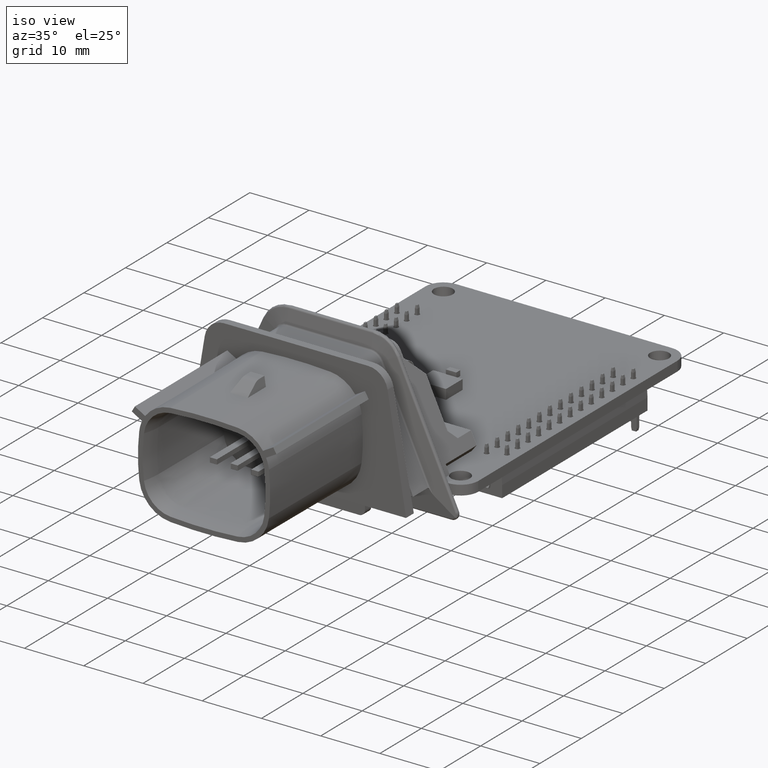
[diagram: clean part render]
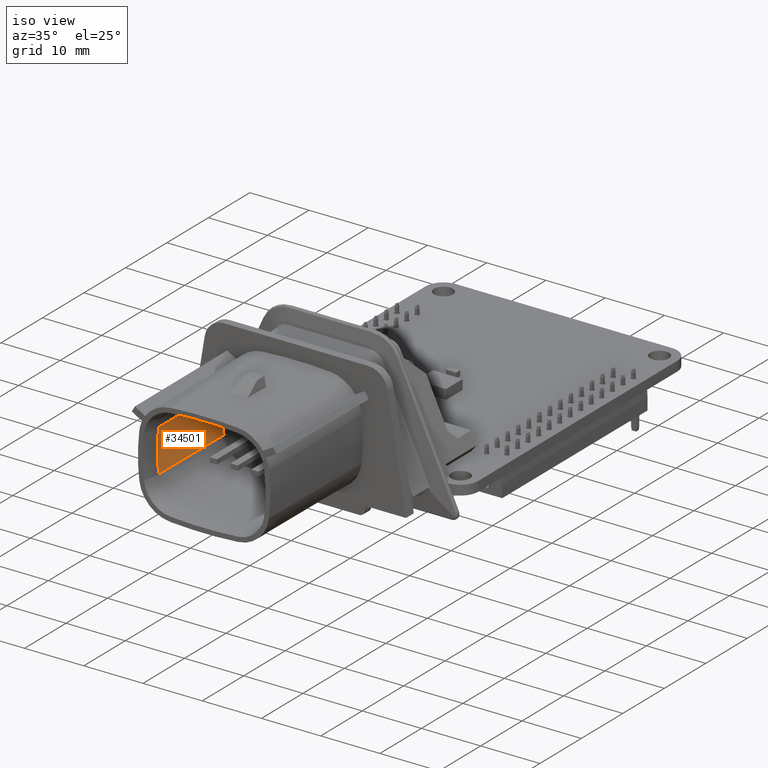
[diagram: same view with one face highlighted and labeled with its STEP entity id]
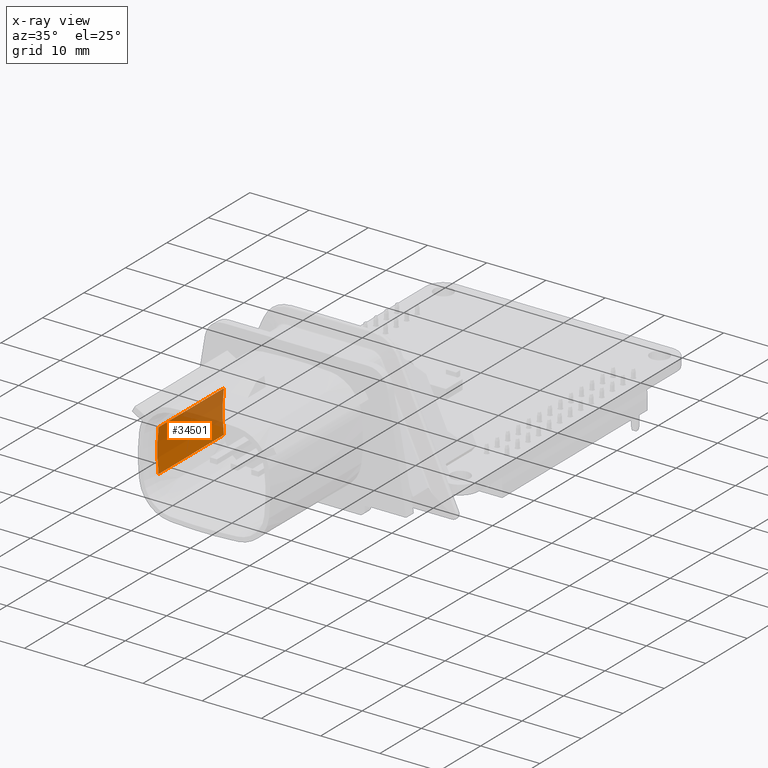
[diagram: x-ray of the same camera — body ghosted, the highlighted face saturated]
A machine part, iso view. The second image highlights one B-rep face of the part: STEP entity #34501.
The next image is the same camera in x-ray: the body ghosted, the highlighted face saturated — about 28% of this face is hidden behind the body in this view.
In plain terms, the highlighted conical surface has half-angle 0.25 deg.
Its self-contained STEP definition (entity closure, byte-faithful):
#6799 = PLANE('',#6800);
#6800 = AXIS2_PLACEMENT_3D('',#6801,#6802,#6803);
#6801 = CARTESIAN_POINT('',(5.99676902494,18.25659034217,15.335));
#6802 = DIRECTION('',(0.E+000,0.E+000,1.));
#6803 = DIRECTION('',(1.,-0.E+000,0.E+000));
#13233 = TOROIDAL_SURFACE('',#13234,40.2717413,9.8464104);
#13234 = AXIS2_PLACEMENT_3D('',#13235,#13236,#13237);
#13235 = CARTESIAN_POINT('',(27.98683771858,11.50206580454,
    30.94184092955));
#13236 = DIRECTION('',(-0.E+000,0.E+000,-1.));
#13237 = DIRECTION('',(-0.993093812473,-0.117322971442,0.E+000));
#21375 = EDGE_CURVE('',#21376,#21378,#21380,.T.);
#21376 = VERTEX_POINT('',#21377);
#21377 = CARTESIAN_POINT('',(-2.160649181462,15.06365555588,15.335));
#21378 = VERTEX_POINT('',#21379);
#21379 = CARTESIAN_POINT('',(-2.160649181462,7.940476053201,15.335));
#21380 = SURFACE_CURVE('',#21381,(#21386,#21393),.PCURVE_S1.);
#21381 = CIRCLE('',#21382,30.357139);
#21382 = AXIS2_PLACEMENT_3D('',#21383,#21384,#21385);
#21383 = CARTESIAN_POINT('',(27.98683771859,11.50206580455,
    15.33500000001));
#21384 = DIRECTION('',(0.E+000,0.E+000,1.));
#21385 = DIRECTION('',(-0.993093812473,0.117322971442,0.E+000));
#21386 = PCURVE('',#6799,#21387);
#21387 = DEFINITIONAL_REPRESENTATION('',(#21388),#21392);
#21388 = CIRCLE('',#21389,30.357139);
#21389 = AXIS2_PLACEMENT_2D('',#21390,#21391);
#21390 = CARTESIAN_POINT('',(21.99006869365,-6.75452453762));
#21391 = DIRECTION('',(-0.993093812473,0.117322971442));
#21392 = ( GEOMETRIC_REPRESENTATION_CONTEXT(2) 
PARAMETRIC_REPRESENTATION_CONTEXT() REPRESENTATION_CONTEXT('2D SPACE',''
  ) );
#21393 = PCURVE('',#21394,#21399);
#21394 = CONICAL_SURFACE('',#21395,30.3912818,4.3633231E-003);
#21395 = AXIS2_PLACEMENT_3D('',#21396,#21397,#21398);
#21396 = CARTESIAN_POINT('',(27.98683771858,11.50206580454,
    23.15990193177));
#21397 = DIRECTION('',(0.E+000,0.E+000,1.));
#21398 = DIRECTION('',(-1.,0.E+000,0.E+000));
#21399 = DEFINITIONAL_REPRESENTATION('',(#21400),#21426);
#21400 = B_SPLINE_CURVE_WITH_KNOTS('',3,(#21401,#21402,#21403,#21404,
    #21405,#21406,#21407,#21408,#21409,#21410,#21411,#21412,#21413,
    #21414,#21415,#21416,#21417,#21418,#21419,#21420,#21421,#21422,
    #21423,#21424,#21425),.UNSPECIFIED.,.F.,.F.,(4,1,1,1,1,1,1,1,1,1,1,1
    ,1,1,1,1,1,1,1,1,1,1,4),(0.E+000,1.069034587036E-002,
    2.138069174072E-002,3.207103761108E-002,4.276138348144E-002,
    5.34517293518E-002,6.414207522216E-002,7.483242109252E-002,
    8.552276696288E-002,9.621311283324E-002,0.106903458704,
    0.117593804574,0.128284150444,0.138974496315,0.149664842185,
    0.160355188055,0.171045533926,0.181735879796,0.192426225666,
    0.203116571537,0.213806917407,0.224497263278,0.235187609148),
  .QUASI_UNIFORM_KNOTS.);
#21401 = CARTESIAN_POINT('',(6.165591502605,-7.824901931795));
#21402 = CARTESIAN_POINT('',(6.169154951229,-7.824901931795));
#21403 = CARTESIAN_POINT('',(6.176281848476,-7.824901931795));
#21404 = CARTESIAN_POINT('',(6.186972194346,-7.824901931795));
#21405 = CARTESIAN_POINT('',(6.197662540216,-7.824901931795));
#21406 = CARTESIAN_POINT('',(6.208352886087,-7.824901931795));
#21407 = CARTESIAN_POINT('',(6.219043231957,-7.824901931795));
#21408 = CARTESIAN_POINT('',(6.229733577827,-7.824901931795));
#21409 = CARTESIAN_POINT('',(6.240423923698,-7.824901931795));
#21410 = CARTESIAN_POINT('',(6.251114269568,-7.824901931795));
#21411 = CARTESIAN_POINT('',(6.261804615439,-7.824901931795));
#21412 = CARTESIAN_POINT('',(6.272494961309,-7.824901931795));
#21413 = CARTESIAN_POINT('',(6.283185307179,-7.824901931795));
#21414 = CARTESIAN_POINT('',(6.29387565305,-7.824901931795));
#21415 = CARTESIAN_POINT('',(6.30456599892,-7.824901931795));
#21416 = CARTESIAN_POINT('',(6.31525634479,-7.824901931795));
#21417 = CARTESIAN_POINT('',(6.325946690661,-7.824901931795));
#21418 = CARTESIAN_POINT('',(6.336637036531,-7.824901931795));
#21419 = CARTESIAN_POINT('',(6.347327382401,-7.824901931795));
#21420 = CARTESIAN_POINT('',(6.358017728272,-7.824901931795));
#21421 = CARTESIAN_POINT('',(6.368708074142,-7.824901931795));
#21422 = CARTESIAN_POINT('',(6.379398420013,-7.824901931795));
#21423 = CARTESIAN_POINT('',(6.390088765883,-7.824901931795));
#21424 = CARTESIAN_POINT('',(6.39721566313,-7.824901931795));
#21425 = CARTESIAN_POINT('',(6.400779111753,-7.824901931795));
#21426 = ( GEOMETRIC_REPRESENTATION_CONTEXT(2) 
PARAMETRIC_REPRESENTATION_CONTEXT() REPRESENTATION_CONTEXT('2D SPACE',''
  ) );
#21445 = CONICAL_SURFACE('',#21446,4.3841248,4.3633231E-003);
#21446 = AXIS2_PLACEMENT_3D('',#21447,#21448,#21449);
#21447 = CARTESIAN_POINT('',(2.159290992589,8.450828863081,
    23.15990193177));
#21448 = DIRECTION('',(0.E+000,0.E+000,1.));
#21449 = DIRECTION('',(-1.,0.E+000,0.E+000));
#21744 = CONICAL_SURFACE('',#21745,4.3841248,4.3633231E-003);
#21745 = AXIS2_PLACEMENT_3D('',#21746,#21747,#21748);
#21746 = CARTESIAN_POINT('',(2.159290992589,14.553302746,23.15990193177)
  );
#21747 = DIRECTION('',(0.E+000,0.E+000,1.));
#21748 = DIRECTION('',(-1.,0.E+000,0.E+000));
#22526 = EDGE_CURVE('',#22527,#21376,#22529,.T.);
#22527 = VERTEX_POINT('',#22528);
#22528 = CARTESIAN_POINT('',(-2.228463172941,15.07166702356,
    30.98480386354));
#22529 = SURFACE_CURVE('',#22530,(#22534,#22563),.PCURVE_S1.);
#22530 = LINE('',#22531,#22532);
#22531 = CARTESIAN_POINT('',(-2.228463172951,15.07166702357,
    30.98480386355));
#22532 = VECTOR('',#22533,1.);
#22533 = DIRECTION('',(4.333175453219E-003,-5.119164112561E-004,
    -0.999990480721));
#22534 = PCURVE('',#21744,#22535);
#22535 = DEFINITIONAL_REPRESENTATION('',(#22536),#22562);
#22536 = B_SPLINE_CURVE_WITH_KNOTS('',3,(#22537,#22538,#22539,#22540,
    #22541,#22542,#22543,#22544,#22545,#22546,#22547,#22548,#22549,
    #22550,#22551,#22552,#22553,#22554,#22555,#22556,#22557,#22558,
    #22559,#22560,#22561),.UNSPECIFIED.,.F.,.F.,(4,1,1,1,1,1,1,1,1,1,1,1
    ,1,1,1,1,1,1,1,1,1,1,4),(1.004569250204E-011,0.711361492729,
    1.422722985447,2.134084478166,2.845445970885,3.556807463604,
    4.268168956322,4.979530449041,5.69089194176,6.402253434478,
    7.113614927197,7.824976419916,8.536337912635,9.247699405353,
    9.959060898072,10.670422390791,11.381783883509,12.093145376228,
    12.804506868947,13.515868361665,14.227229854384,14.938591347103,
    15.649952839822),.QUASI_UNIFORM_KNOTS.);
#22537 = CARTESIAN_POINT('',(6.165591502605,7.824901931586));
#22538 = CARTESIAN_POINT('',(6.165591502605,7.587783691229));
#22539 = CARTESIAN_POINT('',(6.165591502605,7.113547210516));
#22540 = CARTESIAN_POINT('',(6.165591502605,6.402192489445));
#22541 = CARTESIAN_POINT('',(6.165591502605,5.690837768375));
#22542 = CARTESIAN_POINT('',(6.165591502605,4.979483047305));
#22543 = CARTESIAN_POINT('',(6.165591502606,4.268128326235));
#22544 = CARTESIAN_POINT('',(6.165591502606,3.556773605165));
#22545 = CARTESIAN_POINT('',(6.165591502606,2.845418884095));
#22546 = CARTESIAN_POINT('',(6.165591502606,2.134064163025));
#22547 = CARTESIAN_POINT('',(6.165591502606,1.422709441955));
#22548 = CARTESIAN_POINT('',(6.165591502606,0.711354720885));
#22549 = CARTESIAN_POINT('',(6.165591502606,-1.854040341528E-010));
#22550 = CARTESIAN_POINT('',(6.165591502606,-0.711354721256));
#22551 = CARTESIAN_POINT('',(6.165591502606,-1.422709442326));
#22552 = CARTESIAN_POINT('',(6.165591502606,-2.134064163396));
#22553 = CARTESIAN_POINT('',(6.165591502606,-2.845418884466));
#22554 = CARTESIAN_POINT('',(6.165591502607,-3.556773605536));
#22555 = CARTESIAN_POINT('',(6.165591502607,-4.268128326606));
#22556 = CARTESIAN_POINT('',(6.165591502607,-4.979483047676));
#22557 = CARTESIAN_POINT('',(6.165591502607,-5.690837768746));
#22558 = CARTESIAN_POINT('',(6.165591502607,-6.402192489816));
#22559 = CARTESIAN_POINT('',(6.165591502607,-7.113547210886));
#22560 = CARTESIAN_POINT('',(6.165591502607,-7.5877836916));
#22561 = CARTESIAN_POINT('',(6.165591502607,-7.824901931956));
#22562 = ( GEOMETRIC_REPRESENTATION_CONTEXT(2) 
PARAMETRIC_REPRESENTATION_CONTEXT() REPRESENTATION_CONTEXT('2D SPACE',''
  ) );
#22563 = PCURVE('',#21394,#22564);
#22564 = DEFINITIONAL_REPRESENTATION('',(#22565),#22591);
#22565 = B_SPLINE_CURVE_WITH_KNOTS('',3,(#22566,#22567,#22568,#22569,
    #22570,#22571,#22572,#22573,#22574,#22575,#22576,#22577,#22578,
    #22579,#22580,#22581,#22582,#22583,#22584,#22585,#22586,#22587,
    #22588,#22589,#22590),.UNSPECIFIED.,.F.,.F.,(4,1,1,1,1,1,1,1,1,1,1,1
    ,1,1,1,1,1,1,1,1,1,1,4),(1.004569250204E-011,0.711361492729,
    1.422722985447,2.134084478166,2.845445970885,3.556807463604,
    4.268168956322,4.979530449041,5.69089194176,6.402253434478,
    7.113614927197,7.824976419916,8.536337912635,9.247699405353,
    9.959060898072,10.670422390791,11.381783883509,12.093145376228,
    12.804506868947,13.515868361665,14.227229854384,14.938591347103,
    15.649952839822),.QUASI_UNIFORM_KNOTS.);
#22566 = CARTESIAN_POINT('',(6.165591502606,7.824901931714));
#22567 = CARTESIAN_POINT('',(6.165591502606,7.587783691358));
#22568 = CARTESIAN_POINT('',(6.165591502606,7.113547210644));
#22569 = CARTESIAN_POINT('',(6.165591502606,6.402192489574));
#22570 = CARTESIAN_POINT('',(6.165591502606,5.690837768504));
#22571 = CARTESIAN_POINT('',(6.165591502606,4.979483047434));
#22572 = CARTESIAN_POINT('',(6.165591502606,4.268128326364));
#22573 = CARTESIAN_POINT('',(6.165591502606,3.556773605294));
#22574 = CARTESIAN_POINT('',(6.165591502606,2.845418884224));
#22575 = CARTESIAN_POINT('',(6.165591502606,2.134064163154));
#22576 = CARTESIAN_POINT('',(6.165591502606,1.422709442083));
#22577 = CARTESIAN_POINT('',(6.165591502606,0.711354721013));
#22578 = CARTESIAN_POINT('',(6.165591502606,-5.676254986979E-011));
#22579 = CARTESIAN_POINT('',(6.165591502606,-0.711354721127));
#22580 = CARTESIAN_POINT('',(6.165591502606,-1.422709442197));
#22581 = CARTESIAN_POINT('',(6.165591502606,-2.134064163267));
#22582 = CARTESIAN_POINT('',(6.165591502606,-2.845418884337));
#22583 = CARTESIAN_POINT('',(6.165591502606,-3.556773605407));
#22584 = CARTESIAN_POINT('',(6.165591502606,-4.268128326477));
#22585 = CARTESIAN_POINT('',(6.165591502606,-4.979483047547));
#22586 = CARTESIAN_POINT('',(6.165591502606,-5.690837768618));
#22587 = CARTESIAN_POINT('',(6.165591502606,-6.402192489688));
#22588 = CARTESIAN_POINT('',(6.165591502606,-7.113547210758));
#22589 = CARTESIAN_POINT('',(6.165591502606,-7.587783691471));
#22590 = CARTESIAN_POINT('',(6.165591502606,-7.824901931828));
#22591 = ( GEOMETRIC_REPRESENTATION_CONTEXT(2) 
PARAMETRIC_REPRESENTATION_CONTEXT() REPRESENTATION_CONTEXT('2D SPACE',''
  ) );
#27731 = VERTEX_POINT('',#27732);
#27732 = CARTESIAN_POINT('',(-2.228463172941,7.932464585516,
    30.98480386354));
#29467 = EDGE_CURVE('',#27731,#22527,#29468,.T.);
#29468 = SURFACE_CURVE('',#29469,(#29474,#29503),.PCURVE_S1.);
#29469 = CIRCLE('',#29470,30.4254246);
#29470 = AXIS2_PLACEMENT_3D('',#29471,#29472,#29473);
#29471 = CARTESIAN_POINT('',(27.98683771859,11.50206580455,
    30.98480386355));
#29472 = DIRECTION('',(-0.E+000,0.E+000,-1.));
#29473 = DIRECTION('',(-0.993093812473,-0.117322971442,0.E+000));
#29474 = PCURVE('',#13233,#29475);
#29475 = DEFINITIONAL_REPRESENTATION('',(#29476),#29502);
#29476 = B_SPLINE_CURVE_WITH_KNOTS('',3,(#29477,#29478,#29479,#29480,
    #29481,#29482,#29483,#29484,#29485,#29486,#29487,#29488,#29489,
    #29490,#29491,#29492,#29493,#29494,#29495,#29496,#29497,#29498,
    #29499,#29500,#29501),.UNSPECIFIED.,.F.,.F.,(4,1,1,1,1,1,1,1,1,1,1,1
    ,1,1,1,1,1,1,1,1,1,1,4),(0.E+000,1.069034587033E-002,
    2.138069174065E-002,3.207103761098E-002,4.27613834813E-002,
    5.345172935163E-002,6.414207522195E-002,7.483242109228E-002,
    8.55227669626E-002,9.621311283293E-002,0.106903458703,0.117593804574
    ,0.128284150444,0.138974496314,0.149664842185,0.160355188055,
    0.171045533925,0.181735879796,0.192426225666,0.203116571536,
    0.213806917407,0.224497263277,0.235187609147),
  .QUASI_UNIFORM_KNOTS.);
#29477 = CARTESIAN_POINT('',(0.E+000,3.145955976714));
#29478 = CARTESIAN_POINT('',(3.563448623444E-003,3.145955976714));
#29479 = CARTESIAN_POINT('',(1.069034587033E-002,3.145955976714));
#29480 = CARTESIAN_POINT('',(2.138069174066E-002,3.145955976714));
#29481 = CARTESIAN_POINT('',(3.207103761099E-002,3.145955976714));
#29482 = CARTESIAN_POINT('',(4.276138348132E-002,3.145955976714));
#29483 = CARTESIAN_POINT('',(5.345172935165E-002,3.145955976714));
#29484 = CARTESIAN_POINT('',(6.414207522198E-002,3.145955976714));
#29485 = CARTESIAN_POINT('',(7.483242109231E-002,3.145955976714));
#29486 = CARTESIAN_POINT('',(8.552276696264E-002,3.145955976714));
#29487 = CARTESIAN_POINT('',(9.621311283296E-002,3.145955976714));
#29488 = CARTESIAN_POINT('',(0.106903458703,3.145955976714));
#29489 = CARTESIAN_POINT('',(0.117593804574,3.145955976714));
#29490 = CARTESIAN_POINT('',(0.128284150444,3.145955976714));
#29491 = CARTESIAN_POINT('',(0.138974496314,3.145955976714));
#29492 = CARTESIAN_POINT('',(0.149664842185,3.145955976714));
#29493 = CARTESIAN_POINT('',(0.160355188055,3.145955976714));
#29494 = CARTESIAN_POINT('',(0.171045533925,3.145955976714));
#29495 = CARTESIAN_POINT('',(0.181735879796,3.145955976714));
#29496 = CARTESIAN_POINT('',(0.192426225666,3.145955976714));
#29497 = CARTESIAN_POINT('',(0.203116571536,3.145955976714));
#29498 = CARTESIAN_POINT('',(0.213806917407,3.145955976714));
#29499 = CARTESIAN_POINT('',(0.224497263277,3.145955976714));
#29500 = CARTESIAN_POINT('',(0.231624160524,3.145955976714));
#29501 = CARTESIAN_POINT('',(0.235187609147,3.145955976714));
#29502 = ( GEOMETRIC_REPRESENTATION_CONTEXT(2) 
PARAMETRIC_REPRESENTATION_CONTEXT() REPRESENTATION_CONTEXT('2D SPACE',''
  ) );
#29503 = PCURVE('',#21394,#29504);
#29504 = DEFINITIONAL_REPRESENTATION('',(#29505),#29531);
#29505 = B_SPLINE_CURVE_WITH_KNOTS('',3,(#29506,#29507,#29508,#29509,
    #29510,#29511,#29512,#29513,#29514,#29515,#29516,#29517,#29518,
    #29519,#29520,#29521,#29522,#29523,#29524,#29525,#29526,#29527,
    #29528,#29529,#29530),.UNSPECIFIED.,.F.,.F.,(4,1,1,1,1,1,1,1,1,1,1,1
    ,1,1,1,1,1,1,1,1,1,1,4),(0.E+000,1.069034587033E-002,
    2.138069174065E-002,3.207103761098E-002,4.27613834813E-002,
    5.345172935163E-002,6.414207522195E-002,7.483242109228E-002,
    8.55227669626E-002,9.621311283293E-002,0.106903458703,0.117593804574
    ,0.128284150444,0.138974496314,0.149664842185,0.160355188055,
    0.171045533925,0.181735879796,0.192426225666,0.203116571536,
    0.213806917407,0.224497263277,0.235187609147),
  .QUASI_UNIFORM_KNOTS.);
#29506 = CARTESIAN_POINT('',(6.400779111753,7.824901931815));
#29507 = CARTESIAN_POINT('',(6.39721566313,7.824901931815));
#29508 = CARTESIAN_POINT('',(6.390088765883,7.824901931815));
#29509 = CARTESIAN_POINT('',(6.379398420013,7.824901931815));
#29510 = CARTESIAN_POINT('',(6.368708074142,7.824901931815));
#29511 = CARTESIAN_POINT('',(6.358017728272,7.824901931815));
#29512 = CARTESIAN_POINT('',(6.347327382402,7.824901931815));
#29513 = CARTESIAN_POINT('',(6.336637036531,7.824901931815));
#29514 = CARTESIAN_POINT('',(6.325946690661,7.824901931815));
#29515 = CARTESIAN_POINT('',(6.315256344791,7.824901931815));
#29516 = CARTESIAN_POINT('',(6.30456599892,7.824901931815));
#29517 = CARTESIAN_POINT('',(6.29387565305,7.824901931815));
#29518 = CARTESIAN_POINT('',(6.28318530718,7.824901931815));
#29519 = CARTESIAN_POINT('',(6.272494961309,7.824901931815));
#29520 = CARTESIAN_POINT('',(6.261804615439,7.824901931815));
#29521 = CARTESIAN_POINT('',(6.251114269569,7.824901931815));
#29522 = CARTESIAN_POINT('',(6.240423923698,7.824901931815));
#29523 = CARTESIAN_POINT('',(6.229733577828,7.824901931815));
#29524 = CARTESIAN_POINT('',(6.219043231958,7.824901931815));
#29525 = CARTESIAN_POINT('',(6.208352886087,7.824901931815));
#29526 = CARTESIAN_POINT('',(6.197662540217,7.824901931815));
#29527 = CARTESIAN_POINT('',(6.186972194347,7.824901931815));
#29528 = CARTESIAN_POINT('',(6.176281848476,7.824901931815));
#29529 = CARTESIAN_POINT('',(6.169154951229,7.824901931815));
#29530 = CARTESIAN_POINT('',(6.165591502606,7.824901931815));
#29531 = ( GEOMETRIC_REPRESENTATION_CONTEXT(2) 
PARAMETRIC_REPRESENTATION_CONTEXT() REPRESENTATION_CONTEXT('2D SPACE',''
  ) );
#34434 = EDGE_CURVE('',#27731,#21378,#34435,.T.);
#34435 = SURFACE_CURVE('',#34436,(#34440,#34469),.PCURVE_S1.);
#34436 = LINE('',#34437,#34438);
#34437 = CARTESIAN_POINT('',(-2.228463172951,7.932464585526,
    30.98480386355));
#34438 = VECTOR('',#34439,1.);
#34439 = DIRECTION('',(4.33317545322E-003,5.119164112581E-004,
    -0.999990480721));
#34440 = PCURVE('',#21445,#34441);
#34441 = DEFINITIONAL_REPRESENTATION('',(#34442),#34468);
#34442 = B_SPLINE_CURVE_WITH_KNOTS('',3,(#34443,#34444,#34445,#34446,
    #34447,#34448,#34449,#34450,#34451,#34452,#34453,#34454,#34455,
    #34456,#34457,#34458,#34459,#34460,#34461,#34462,#34463,#34464,
    #34465,#34466,#34467),.UNSPECIFIED.,.F.,.F.,(4,1,1,1,1,1,1,1,1,1,1,1
    ,1,1,1,1,1,1,1,1,1,1,4),(1.003545417296E-011,0.711361492729,
    1.422722985447,2.134084478166,2.845445970885,3.556807463604,
    4.268168956322,4.979530449041,5.69089194176,6.402253434478,
    7.113614927197,7.824976419916,8.536337912635,9.247699405353,
    9.959060898072,10.670422390791,11.381783883509,12.093145376228,
    12.804506868947,13.515868361665,14.227229854384,14.938591347103,
    15.649952839822),.QUASI_UNIFORM_KNOTS.);
#34443 = CARTESIAN_POINT('',(0.117593804571,7.824901931586));
#34444 = CARTESIAN_POINT('',(0.117593804571,7.587783691229));
#34445 = CARTESIAN_POINT('',(0.117593804571,7.113547210516));
#34446 = CARTESIAN_POINT('',(0.117593804571,6.402192489445));
#34447 = CARTESIAN_POINT('',(0.117593804571,5.690837768375));
#34448 = CARTESIAN_POINT('',(0.117593804571,4.979483047305));
#34449 = CARTESIAN_POINT('',(0.117593804571,4.268128326235));
#34450 = CARTESIAN_POINT('',(0.117593804571,3.556773605165));
#34451 = CARTESIAN_POINT('',(0.11759380457,2.845418884095));
#34452 = CARTESIAN_POINT('',(0.11759380457,2.134064163025));
#34453 = CARTESIAN_POINT('',(0.11759380457,1.422709441955));
#34454 = CARTESIAN_POINT('',(0.11759380457,0.711354720885));
#34455 = CARTESIAN_POINT('',(0.11759380457,-1.854054738576E-010));
#34456 = CARTESIAN_POINT('',(0.11759380457,-0.711354721256));
#34457 = CARTESIAN_POINT('',(0.11759380457,-1.422709442326));
#34458 = CARTESIAN_POINT('',(0.11759380457,-2.134064163396));
#34459 = CARTESIAN_POINT('',(0.11759380457,-2.845418884466));
#34460 = CARTESIAN_POINT('',(0.11759380457,-3.556773605536));
#34461 = CARTESIAN_POINT('',(0.117593804569,-4.268128326606));
#34462 = CARTESIAN_POINT('',(0.117593804569,-4.979483047676));
#34463 = CARTESIAN_POINT('',(0.117593804569,-5.690837768746));
#34464 = CARTESIAN_POINT('',(0.117593804569,-6.402192489816));
#34465 = CARTESIAN_POINT('',(0.117593804569,-7.113547210886));
#34466 = CARTESIAN_POINT('',(0.117593804569,-7.5877836916));
#34467 = CARTESIAN_POINT('',(0.117593804569,-7.824901931956));
#34468 = ( GEOMETRIC_REPRESENTATION_CONTEXT(2) 
PARAMETRIC_REPRESENTATION_CONTEXT() REPRESENTATION_CONTEXT('2D SPACE',''
  ) );
#34469 = PCURVE('',#21394,#34470);
#34470 = DEFINITIONAL_REPRESENTATION('',(#34471),#34497);
#34471 = B_SPLINE_CURVE_WITH_KNOTS('',3,(#34472,#34473,#34474,#34475,
    #34476,#34477,#34478,#34479,#34480,#34481,#34482,#34483,#34484,
    #34485,#34486,#34487,#34488,#34489,#34490,#34491,#34492,#34493,
    #34494,#34495,#34496),.UNSPECIFIED.,.F.,.F.,(4,1,1,1,1,1,1,1,1,1,1,1
    ,1,1,1,1,1,1,1,1,1,1,4),(1.003545417296E-011,0.711361492729,
    1.422722985447,2.134084478166,2.845445970885,3.556807463604,
    4.268168956322,4.979530449041,5.69089194176,6.402253434478,
    7.113614927197,7.824976419916,8.536337912635,9.247699405353,
    9.959060898072,10.670422390791,11.381783883509,12.093145376228,
    12.804506868947,13.515868361665,14.227229854384,14.938591347103,
    15.649952839822),.QUASI_UNIFORM_KNOTS.);
#34472 = CARTESIAN_POINT('',(6.400779111753,7.824901931714));
#34473 = CARTESIAN_POINT('',(6.400779111753,7.587783691358));
#34474 = CARTESIAN_POINT('',(6.400779111753,7.113547210644));
#34475 = CARTESIAN_POINT('',(6.400779111753,6.402192489574));
#34476 = CARTESIAN_POINT('',(6.400779111753,5.690837768504));
#34477 = CARTESIAN_POINT('',(6.400779111753,4.979483047434));
#34478 = CARTESIAN_POINT('',(6.400779111753,4.268128326364));
#34479 = CARTESIAN_POINT('',(6.400779111753,3.556773605294));
#34480 = CARTESIAN_POINT('',(6.400779111753,2.845418884224));
#34481 = CARTESIAN_POINT('',(6.400779111753,2.134064163154));
#34482 = CARTESIAN_POINT('',(6.400779111753,1.422709442083));
#34483 = CARTESIAN_POINT('',(6.400779111753,0.711354721013));
#34484 = CARTESIAN_POINT('',(6.400779111753,-5.67643391106E-011));
#34485 = CARTESIAN_POINT('',(6.400779111753,-0.711354721127));
#34486 = CARTESIAN_POINT('',(6.400779111753,-1.422709442197));
#34487 = CARTESIAN_POINT('',(6.400779111753,-2.134064163267));
#34488 = CARTESIAN_POINT('',(6.400779111753,-2.845418884337));
#34489 = CARTESIAN_POINT('',(6.400779111753,-3.556773605407));
#34490 = CARTESIAN_POINT('',(6.400779111753,-4.268128326477));
#34491 = CARTESIAN_POINT('',(6.400779111753,-4.979483047547));
#34492 = CARTESIAN_POINT('',(6.400779111753,-5.690837768618));
#34493 = CARTESIAN_POINT('',(6.400779111753,-6.402192489688));
#34494 = CARTESIAN_POINT('',(6.400779111753,-7.113547210758));
#34495 = CARTESIAN_POINT('',(6.400779111753,-7.587783691471));
#34496 = CARTESIAN_POINT('',(6.400779111753,-7.824901931828));
#34497 = ( GEOMETRIC_REPRESENTATION_CONTEXT(2) 
PARAMETRIC_REPRESENTATION_CONTEXT() REPRESENTATION_CONTEXT('2D SPACE',''
  ) );
#34501 = ADVANCED_FACE('',(#34502),#21394,.F.);
#34502 = FACE_BOUND('',#34503,.F.);
#34503 = EDGE_LOOP('',(#34504,#34505,#34506,#34507));
#34504 = ORIENTED_EDGE('',*,*,#21375,.T.);
#34505 = ORIENTED_EDGE('',*,*,#34434,.F.);
#34506 = ORIENTED_EDGE('',*,*,#29467,.T.);
#34507 = ORIENTED_EDGE('',*,*,#22526,.T.);